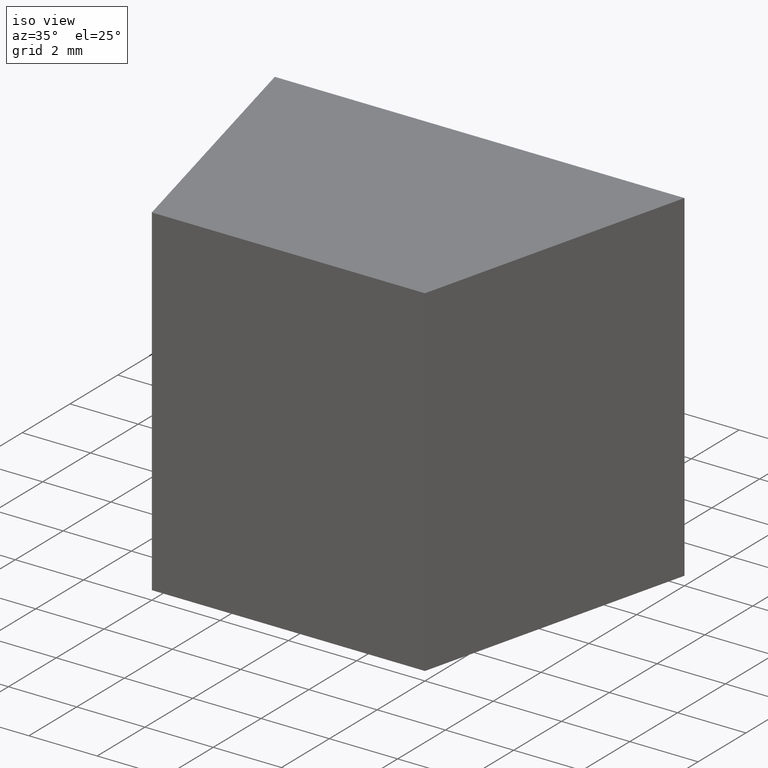
[diagram: clean part render]
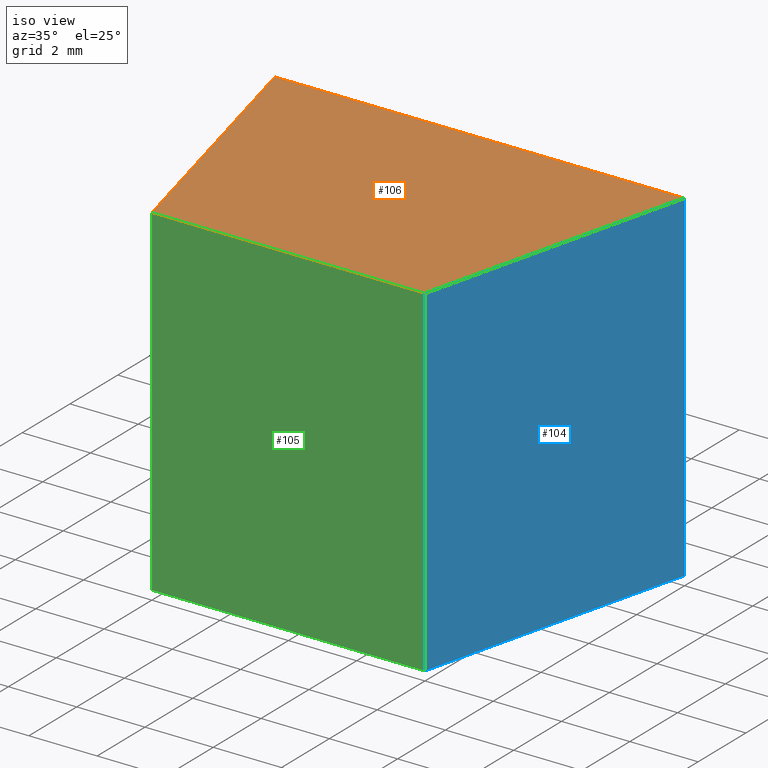
[diagram: same view with three faces highlighted in distinct colors, each labeled with its STEP entity id]
A machine part, iso view with three faces highlighted in distinct colors.
Their STEP definitions:

[orange] entity #106 — the highlighted planar face has unit normal (0, 0, 1).
#20=FACE_OUTER_BOUND('',#26,.T.);
#26=EDGE_LOOP('',(#91,#92,#93,#94));
#31=LINE('',#175,#43);
#34=LINE('',#180,#46);
#36=LINE('',#184,#48);
#38=LINE('',#187,#50);
#43=VECTOR('',#146,10.);
#46=VECTOR('',#151,10.);
#48=VECTOR('',#155,10.);
#50=VECTOR('',#159,10.);
#55=VERTEX_POINT('',#173);
#56=VERTEX_POINT('',#174);
#57=VERTEX_POINT('',#179);
#58=VERTEX_POINT('',#183);
#63=EDGE_CURVE('',#55,#56,#31,.T.);
#66=EDGE_CURVE('',#56,#57,#34,.T.);
#68=EDGE_CURVE('',#57,#58,#36,.T.);
#70=EDGE_CURVE('',#58,#55,#38,.T.);
#91=ORIENTED_EDGE('',*,*,#63,.F.);
#92=ORIENTED_EDGE('',*,*,#70,.F.);
#93=ORIENTED_EDGE('',*,*,#68,.F.);
#94=ORIENTED_EDGE('',*,*,#66,.F.);
#100=PLANE('',#135);
#106=ADVANCED_FACE('',(#20),#100,.T.);
#135=AXIS2_PLACEMENT_3D('',#188,#160,#161);
#146=DIRECTION('',(-0.242535625036333,0.970142500145332,0.));
#151=DIRECTION('',(1.,0.,0.));
#155=DIRECTION('',(-0.242535625036333,-0.970142500145332,0.));
#159=DIRECTION('',(-1.,0.,0.));
#160=DIRECTION('center_axis',(0.,0.,1.));
#161=DIRECTION('ref_axis',(1.,0.,0.));
#173=CARTESIAN_POINT('',(-4.,-4.,5.));
#174=CARTESIAN_POINT('',(-6.,4.,5.));
#175=CARTESIAN_POINT('',(-4.,-4.,5.));
#179=CARTESIAN_POINT('',(6.,4.,5.));
#180=CARTESIAN_POINT('',(-6.,4.,5.));
#183=CARTESIAN_POINT('',(4.,-4.,5.));
#184=CARTESIAN_POINT('',(6.,4.,5.));
#187=CARTESIAN_POINT('',(4.,-4.,5.));
#188=CARTESIAN_POINT('Origin',(4.16333634234434E-16,0.43844718719117,5.));

[blue] entity #104 — the highlighted planar face has unit normal (0.9701, -0.2425, 0).
#18=FACE_OUTER_BOUND('',#24,.T.);
#24=EDGE_LOOP('',(#83,#84,#85,#86));
#27=LINE('',#166,#39);
#35=LINE('',#181,#47);
#36=LINE('',#184,#48);
#37=LINE('',#185,#49);
#39=VECTOR('',#140,10.);
#47=VECTOR('',#152,10.);
#48=VECTOR('',#155,10.);
#49=VECTOR('',#156,10.);
#51=VERTEX_POINT('',#164);
#52=VERTEX_POINT('',#165);
#57=VERTEX_POINT('',#179);
#58=VERTEX_POINT('',#183);
#59=EDGE_CURVE('',#51,#52,#27,.T.);
#67=EDGE_CURVE('',#57,#52,#35,.T.);
#68=EDGE_CURVE('',#57,#58,#36,.T.);
#69=EDGE_CURVE('',#51,#58,#37,.T.);
#83=ORIENTED_EDGE('',*,*,#68,.T.);
#84=ORIENTED_EDGE('',*,*,#69,.F.);
#85=ORIENTED_EDGE('',*,*,#59,.T.);
#86=ORIENTED_EDGE('',*,*,#67,.F.);
#98=PLANE('',#133);
#104=ADVANCED_FACE('',(#18),#98,.T.);
#133=AXIS2_PLACEMENT_3D('',#182,#153,#154);
#140=DIRECTION('',(0.242535625036333,0.970142500145332,0.));
#152=DIRECTION('',(0.,0.,-1.));
#153=DIRECTION('center_axis',(0.970142500145332,-0.242535625036333,0.));
#154=DIRECTION('ref_axis',(0.,0.,-1.));
#155=DIRECTION('',(-0.242535625036333,-0.970142500145332,0.));
#156=DIRECTION('',(0.,0.,1.));
#164=CARTESIAN_POINT('',(4.,-4.,-5.));
#165=CARTESIAN_POINT('',(6.,4.,-5.));
#166=CARTESIAN_POINT('',(6.,4.,-5.));
#179=CARTESIAN_POINT('',(6.,4.,5.));
#181=CARTESIAN_POINT('',(6.,4.,0.));
#182=CARTESIAN_POINT('Origin',(6.,4.,0.));
#183=CARTESIAN_POINT('',(4.,-4.,5.));
#184=CARTESIAN_POINT('',(6.,4.,5.));
#185=CARTESIAN_POINT('',(4.,-4.,0.));

[green] entity #105 — the highlighted planar face has unit normal (0, -1, 0).
#19=FACE_OUTER_BOUND('',#25,.T.);
#25=EDGE_LOOP('',(#87,#88,#89,#90));
#28=LINE('',#168,#40);
#33=LINE('',#177,#45);
#37=LINE('',#185,#49);
#38=LINE('',#187,#50);
#40=VECTOR('',#141,10.);
#45=VECTOR('',#148,10.);
#49=VECTOR('',#156,10.);
#50=VECTOR('',#159,10.);
#51=VERTEX_POINT('',#164);
#53=VERTEX_POINT('',#167);
#55=VERTEX_POINT('',#173);
#58=VERTEX_POINT('',#183);
#60=EDGE_CURVE('',#53,#51,#28,.T.);
#65=EDGE_CURVE('',#55,#53,#33,.T.);
#69=EDGE_CURVE('',#51,#58,#37,.T.);
#70=EDGE_CURVE('',#58,#55,#38,.T.);
#87=ORIENTED_EDGE('',*,*,#70,.T.);
#88=ORIENTED_EDGE('',*,*,#65,.T.);
#89=ORIENTED_EDGE('',*,*,#60,.T.);
#90=ORIENTED_EDGE('',*,*,#69,.T.);
#99=PLANE('',#134);
#105=ADVANCED_FACE('',(#19),#99,.T.);
#134=AXIS2_PLACEMENT_3D('',#186,#157,#158);
#141=DIRECTION('',(1.,0.,0.));
#148=DIRECTION('',(0.,0.,-1.));
#156=DIRECTION('',(0.,0.,1.));
#157=DIRECTION('center_axis',(0.,-1.,0.));
#158=DIRECTION('ref_axis',(0.,0.,-1.));
#159=DIRECTION('',(-1.,0.,0.));
#164=CARTESIAN_POINT('',(4.,-4.,-5.));
#167=CARTESIAN_POINT('',(-4.,-4.,-5.));
#168=CARTESIAN_POINT('',(4.,-4.,-5.));
#173=CARTESIAN_POINT('',(-4.,-4.,5.));
#177=CARTESIAN_POINT('',(-4.,-4.,0.));
#183=CARTESIAN_POINT('',(4.,-4.,5.));
#185=CARTESIAN_POINT('',(4.,-4.,0.));
#186=CARTESIAN_POINT('Origin',(4.,-4.,0.));
#187=CARTESIAN_POINT('',(4.,-4.,5.));